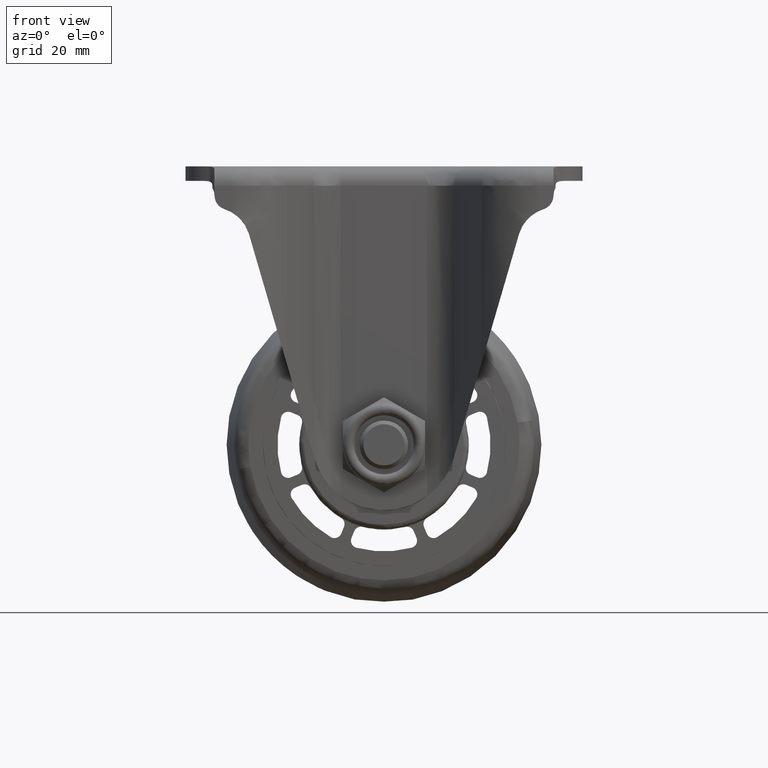
[diagram: clean part render]
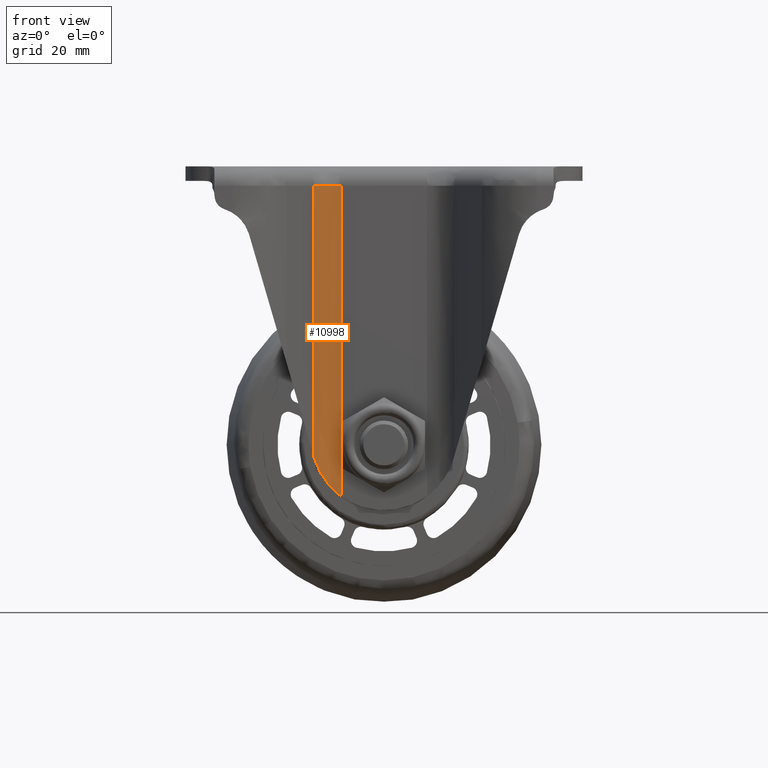
[diagram: same view with one face highlighted and labeled with its STEP entity id]
A machine part, front view. The second image highlights one B-rep face of the part: STEP entity #10998.
In plain terms, the highlighted face is a freeform B-spline surface patch.
Its self-contained STEP definition (entity closure, byte-faithful):
#10902=CARTESIAN_POINT('',(-14.468953329209020,-28.679387027177000,-2.463590738352340));
#10903=VERTEX_POINT('',#10902);
#10904=CARTESIAN_POINT('',(-14.468953329209020,-28.679387027177000,53.500000000000000));
#10905=VERTEX_POINT('',#10904);
#10906=CARTESIAN_POINT('',(-14.468953329209020,-28.679387027177000,-2.463590738352340));
#10907=CARTESIAN_POINT('',(-14.468953329209020,-28.679387027177000,53.500000000000000));
#10908=QUASI_UNIFORM_CURVE('',1,(#10906,#10907),.UNSPECIFIED.,.F.,.U.);
#10909=EDGE_CURVE('',#10903,#10905,#10908,.T.);
#10925=CARTESIAN_POINT('',(-14.593460931426961,-28.898465058312400,-12.190430471147771));
#10926=CARTESIAN_POINT('',(-14.593460931426961,-28.898465058312400,55.142260761778687));
#10927=CARTESIAN_POINT('',(-12.643073156755333,-25.306297638446594,-12.190430471147762));
#10928=CARTESIAN_POINT('',(-12.643073156755333,-25.306297638446594,55.142260761778687));
#10929=CARTESIAN_POINT('',(-8.560545471681808,-25.507908512514021,-12.190430471147771));
#10930=CARTESIAN_POINT('',(-8.560545471681808,-25.507908512514021,55.142260761778680));
#10938=(BOUNDED_SURFACE()B_SPLINE_SURFACE(1,2,((#10925,#10927,#10929),(#10926,#10928,#10930)),.UNSPECIFIED.,.F.,.F.,.U.)B_SPLINE_SURFACE_WITH_KNOTS((2,2),(3,3),(0.0,67.332691232926450),(0.0,7.495530901843347),.UNSPECIFIED.)GEOMETRIC_REPRESENTATION_ITEM()RATIONAL_B_SPLINE_SURFACE(((1.0,0.842976389490469,0.991618198408037),(1.0,0.842976389490469,0.991618198408037)))REPRESENTATION_ITEM('')SURFACE());
#10939=CARTESIAN_POINT('',(-8.881149699124189,-25.499996999999851,-10.588224849900261));
#10940=VERTEX_POINT('',#10939);
#10941=CARTESIAN_POINT('',(-8.881149699124189,-25.499996999999901,53.500000000000000));
#10942=VERTEX_POINT('',#10941);
#10943=CARTESIAN_POINT('',(-8.881149699124189,-25.499996999999851,-10.588224849900261));
#10944=CARTESIAN_POINT('',(-8.881149699124189,-25.499996999999901,53.500000000000000));
#10945=QUASI_UNIFORM_CURVE('',1,(#10943,#10944),.UNSPECIFIED.,.F.,.U.);
#10946=EDGE_CURVE('',#10940,#10942,#10945,.T.);
#10947=ORIENTED_EDGE('',*,*,#10946,.T.);
#10948=CARTESIAN_POINT('',(-8.881149699124189,-25.499996999999901,53.500000000000000));
#10949=CARTESIAN_POINT('',(-9.406547713722135,-25.499881794005351,53.500000000000007));
#10950=CARTESIAN_POINT('',(-10.247093442794460,-25.602502807770691,53.499999999999829));
#10951=CARTESIAN_POINT('',(-11.582687035251750,-26.037942656239920,53.500000000000007));
#10952=CARTESIAN_POINT('',(-12.718494749764901,-26.684194740706580,53.500000000000099));
#10953=CARTESIAN_POINT('',(-13.754468536117139,-27.637231630352460,53.499999999999851));
#10954=CARTESIAN_POINT('',(-14.254269634583890,-28.318041591896460,53.500000000000192));
#10955=CARTESIAN_POINT('',(-14.468953329209020,-28.679387027177000,53.500000000000000));
#10956=B_SPLINE_CURVE_WITH_KNOTS('',3,(#10948,#10949,#10950,#10951,#10952,#10953,#10954,#10955),.UNSPECIFIED.,.F.,.U.,(4,1,1,1,1,4),(0.000000048027859,1.576176871262608,2.521886226288668,4.203138184767557,5.464091437319270,6.725024363028707),.UNSPECIFIED.);
#10957=EDGE_CURVE('',#10942,#10905,#10956,.T.);
#10958=ORIENTED_EDGE('',*,*,#10957,.T.);
#10959=ORIENTED_EDGE('',*,*,#10909,.F.);
#10960=CARTESIAN_POINT('',(-14.400001811212540,-28.566009323129450,-2.699993790123425));
#10961=VERTEX_POINT('',#10960);
#10962=CARTESIAN_POINT('',(-14.400001811212540,-28.566009323129450,-2.699993790123425));
#10963=CARTESIAN_POINT('',(-14.468953329209020,-28.679387027177000,-2.463590738352340));
#10964=QUASI_UNIFORM_CURVE('',1,(#10962,#10963),.UNSPECIFIED.,.F.,.U.);
#10965=EDGE_CURVE('',#10961,#10903,#10964,.T.);
#10966=ORIENTED_EDGE('',*,*,#10965,.F.);
#10967=CARTESIAN_POINT('',(-14.400001811212540,-28.566009323129450,-2.699993790123425));
#10968=CARTESIAN_POINT('',(-14.289225340388070,-28.387977536906948,-3.079799442280185));
#10969=CARTESIAN_POINT('',(-14.164649607028910,-28.207116723146640,-3.451286829396446));
#10970=CARTESIAN_POINT('',(-13.887792483201650,-27.848510506704191,-4.181703943394687));
#10971=CARTESIAN_POINT('',(-13.735507405328381,-27.670668215394489,-4.540586160238282));
#10972=CARTESIAN_POINT('',(-13.402193834325329,-27.323669766736572,-5.247891912906223));
#10973=CARTESIAN_POINT('',(-13.221170757137999,-27.154464461876319,-5.596295037456437));
#10974=CARTESIAN_POINT('',(-12.828404980817041,-26.829489858223031,-6.283879822824757));
#10975=CARTESIAN_POINT('',(-12.616676556406469,-26.673683839799029,-6.623051411572615));
#10976=CARTESIAN_POINT('',(-12.273640620149040,-26.453876865503538,-7.125477889278635));
#10977=CARTESIAN_POINT('',(-12.155043902749430,-26.382930618755559,-7.291895437762599));
#10978=CARTESIAN_POINT('',(-11.970346209406619,-26.280572254641459,-7.539991208155220));
#10979=CARTESIAN_POINT('',(-11.907551956370730,-26.247083956310419,-7.622553200806691));
#10980=CARTESIAN_POINT('',(-11.780185029754641,-26.181860420073662,-7.786442330621632));
#10981=CARTESIAN_POINT('',(-11.715609729963781,-26.150118884248350,-7.867779545992212));
#10982=CARTESIAN_POINT('',(-11.388228393882830,-25.995968470129661,-8.271444802222121));
#10983=CARTESIAN_POINT('',(-11.111951009889671,-25.887154945995711,-8.584729786911373));
#10984=CARTESIAN_POINT('',(-10.528832667817790,-25.704883553842450,-9.192095808320214));
#10985=CARTESIAN_POINT('',(-10.222010667838770,-25.631363339545810,-9.486176994483555));
#10986=CARTESIAN_POINT('',(-9.817403045679889,-25.567257121187019,-9.841525321981424));
#10987=CARTESIAN_POINT('',(-9.735423228720954,-25.555835584444221,-9.911981105005692));
#10988=CARTESIAN_POINT('',(-9.569277750526295,-25.535982813909360,-10.051653626931900));
#10989=CARTESIAN_POINT('',(-9.485039134076137,-25.527549513623679,-10.120925505158461));
#10990=CARTESIAN_POINT('',(-9.230257314108176,-25.507142502374371,-10.325813198294050));
#10991=CARTESIAN_POINT('',(-9.057285202300992,-25.499996999999851,-10.458819102533100));
#10992=CARTESIAN_POINT('',(-8.881149699124169,-25.499996999999851,-10.588224849900280));
#10993=B_SPLINE_CURVE_WITH_KNOTS('',3,(#10967,#10968,#10969,#10970,#10971,#10972,#10973,#10974,#10975,#10976,#10977,#10978,#10979,#10980,#10981,#10982,#10983,#10984,#10985,#10986,#10987,#10988,#10989,#10990,#10991,#10992),.UNSPECIFIED.,.F.,.U.,(4,2,2,2,2,2,2,2,2,2,2,2,4),(0.0,0.124999999999999,0.249999999999999,0.374999999999998,0.499999999999998,0.562499999999997,0.593749999999997,0.624999999999997,0.749999999999998,0.874999999999999,0.906249999999999,0.937499999999999,1.0),.UNSPECIFIED.);
#10994=EDGE_CURVE('',#10961,#10940,#10993,.T.);
#10995=ORIENTED_EDGE('',*,*,#10994,.T.);
#10996=EDGE_LOOP('',(#10947,#10958,#10959,#10966,#10995));
#10997=FACE_OUTER_BOUND('',#10996,.T.);
#10998=ADVANCED_FACE('',(#10997),#10938,.F.);